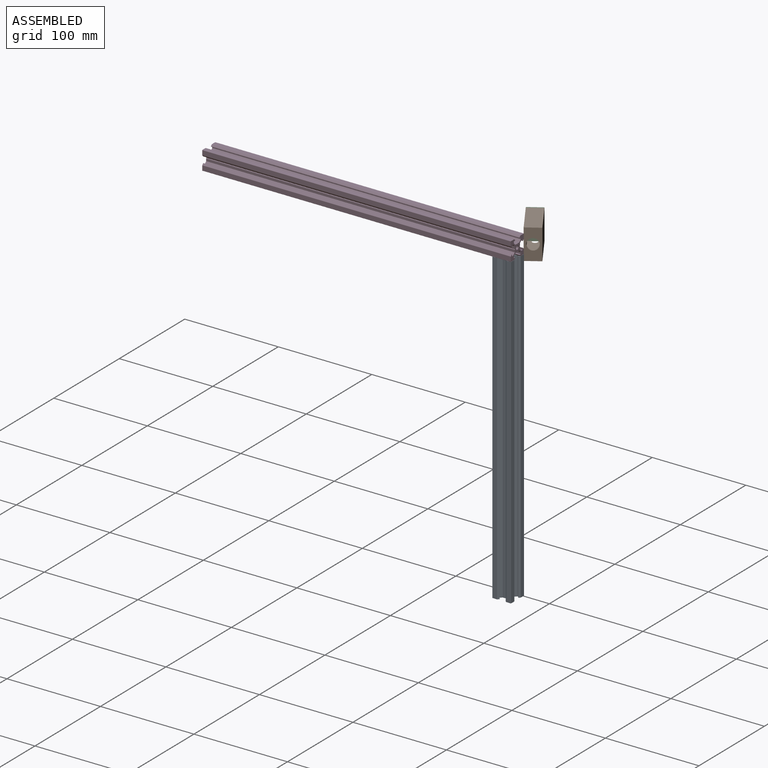
[diagram: assembled view]
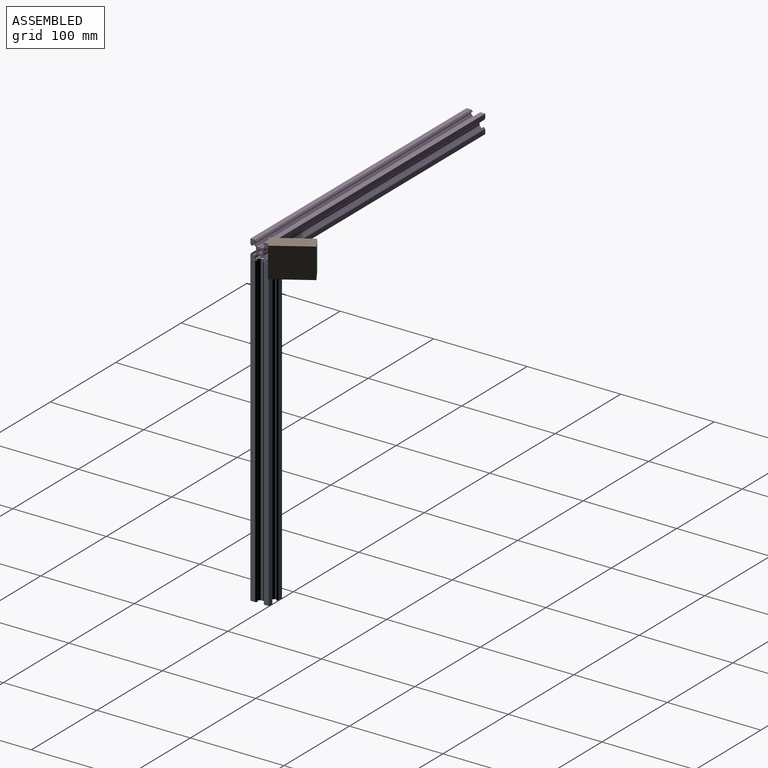
[diagram: assembled view, second angle]
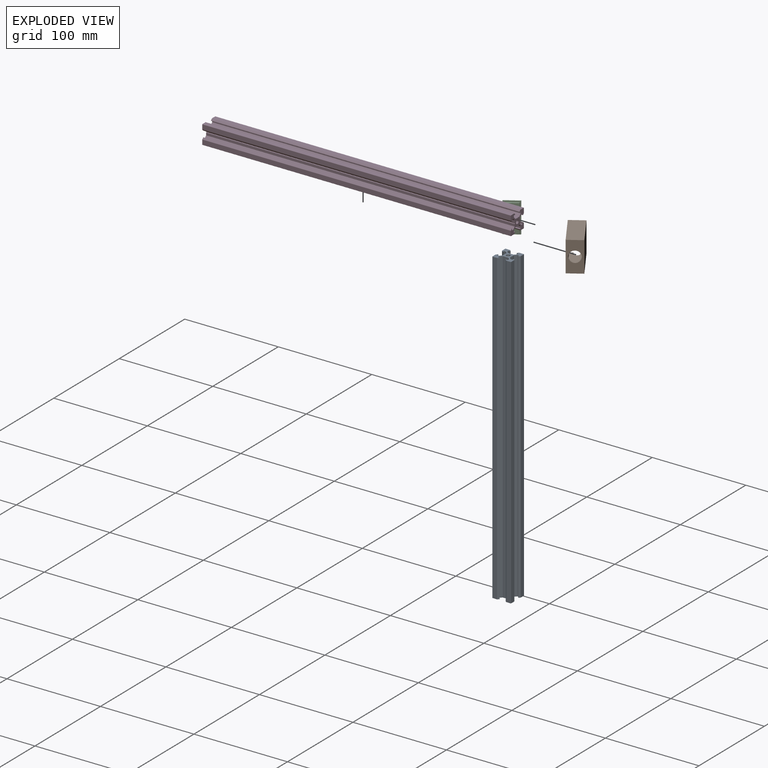
[diagram: exploded view]
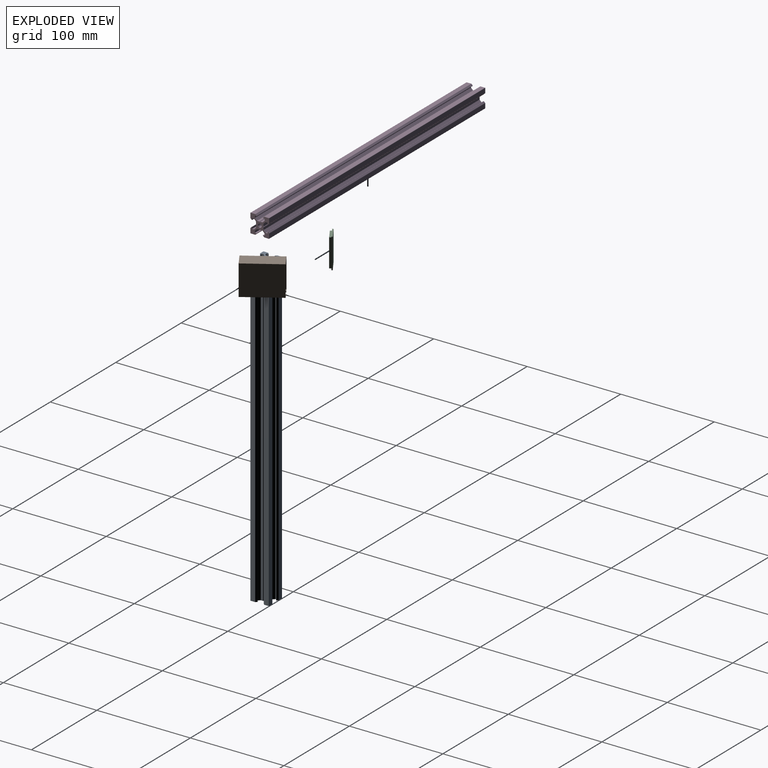
[diagram: exploded view, second angle]
ASSEMBLY  parts=4 mates=2
PART A: 79 faces, bbox 330x20x20 mm
  f0: plane 330x0.5mm, normal (0,-0.71,-0.71), area 233.3mm2, adj f1,f76,f77,f78
  f1: plane 330x0.5mm, normal (0,-0.71,0.71), area 233.3mm2, adj f0,f2,f77,f78
  f2: plane 330x2.51mm, normal (0,-1,0), area 828.3mm2, adj f1,f3,f77,f78
  f3: plane 330x2.2mm, normal (0,-0.71,0.71), area 1026.7mm2, adj f2,f4,f77,f78
  f4: plane 330x2mm, normal (0,0,1), area 660mm2, adj f3,f5,f77,f78
  f5: plane 330x1.73mm, normal (0,1,0), area 570mm2, adj f4,f6,f77,f78
  f6: cylinder r=0.2mm len=330mm, axis (-1,0,0), area 155.5mm2, adj f5,f7,f77,f78
  f7: plane 330x1.4mm, normal (0,-0.71,0.71), area 653.4mm2, adj f6,f8,f77,f78
  f8: cylinder r=0.2mm len=330mm, axis (-1,0,0), area 51.8mm2, adj f7,f9,f77,f78
  f9: plane 330x4.92mm, normal (0,-1,0), area 1622.7mm2, adj f8,f10,f77,f78
  f10: cylinder r=0.2mm len=330mm, axis (-1,0,0), area 103.7mm2, adj f9,f11,f77,f78
  f11: plane 330x4.92mm, normal (0,0,-1), area 1622.7mm2, adj f10,f12,f77,f78
  f12: cylinder r=0.2mm len=330mm, axis (-1,0,0), area 51.8mm2, adj f11,f13,f77,f78
  f13: plane 330x1.4mm, normal (0,0.71,-0.71), area 653.4mm2, adj f12,f14,f77,f78
  f14: cylinder r=0.2mm len=330mm, axis (-1,0,0), area 155.5mm2, adj f13,f15,f77,f78
  f15: plane 330x1.73mm, normal (0,0,1), area 570mm2, adj f14,f16,f77,f78
  f16: plane 330x2mm, normal (0,1,0), area 660mm2, adj f15,f17,f77,f78
  f17: plane 330x2.2mm, normal (0,0.71,-0.71), area 1026.7mm2, adj f16,f18,f77,f78
  f18: plane 330x2.51mm, normal (0,0,-1), area 828.3mm2, adj f17,f19,f77,f78
  f19: plane 330x0.5mm, normal (0,0.71,-0.71), area 233.3mm2, adj f18,f20,f77,f78
  f20: plane 330x0.5mm, normal (0,-0.71,-0.71), area 233.3mm2, adj f19,f21,f77,f78
  f21: plane 330x2.51mm, normal (0,0,-1), area 828.3mm2, adj f20,f22,f77,f78
  f22: plane 330x2.2mm, normal (0,-0.71,-0.71), area 1026.7mm2, adj f21,f23,f77,f78
  f23: plane 330x2mm, normal (0,-1,0), area 660mm2, adj f22,f24,f77,f78
  f24: plane 330x1.73mm, normal (0,0,1), area 570mm2, adj f23,f25,f77,f78
  f25: cylinder r=0.2mm len=330mm, axis (-1,0,0), area 155.5mm2, adj f24,f26,f77,f78
  f26: plane 330x1.4mm, normal (0,-0.71,-0.71), area 653.4mm2, adj f25,f27,f77,f78
  f27: cylinder r=0.2mm len=330mm, axis (-1,0,0), area 51.8mm2, adj f26,f28,f77,f78
  f28: plane 330x4.92mm, normal (0,0,-1), area 1622.7mm2, adj f27,f29,f77,f78
  f29: cylinder r=0.2mm len=330mm, axis (-1,0,0), area 103.7mm2, adj f28,f30,f77,f78
  f30: plane 330x4.92mm, normal (0,1,0), area 1622.7mm2, adj f29,f31,f77,f78
  f31: cylinder r=0.2mm len=330mm, axis (-1,0,0), area 51.8mm2, adj f30,f32,f77,f78
  f32: plane 330x1.4mm, normal (0,0.71,0.71), area 653.4mm2, adj f31,f33,f77,f78
  f33: cylinder r=0.2mm len=330mm, axis (-1,0,0), area 155.5mm2, adj f32,f34,f77,f78
  f34: plane 330x1.73mm, normal (0,-1,0), area 570mm2, adj f33,f35,f77,f78
  f35: plane 330x2mm, normal (0,0,1), area 660mm2, adj f34,f36,f77,f78
  f36: plane 330x2.2mm, normal (0,0.71,0.71), area 1026.7mm2, adj f35,f37,f77,f78
  f37: plane 330x2.51mm, normal (0,1,0), area 828.3mm2, adj f36,f38,f77,f78
  f38: plane 330x0.5mm, normal (0,0.71,0.71), area 233.3mm2, adj f37,f39,f77,f78
  f39: plane 330x0.5mm, normal (0,0.71,-0.71), area 233.3mm2, adj f38,f40,f77,f78
  f40: plane 330x2.51mm, normal (0,1,0), area 828.3mm2, adj f39,f41,f77,f78
  f41: plane 330x2.2mm, normal (0,0.71,-0.71), area 1026.7mm2, adj f40,f42,f77,f78
  f42: plane 330x2mm, normal (0,0,-1), area 660mm2, adj f41,f43,f77,f78
  f43: plane 330x1.73mm, normal (0,-1,0), area 570mm2, adj f42,f44,f77,f78
  f44: cylinder r=0.2mm len=330mm, axis (-1,0,0), area 155.5mm2, adj f43,f45,f77,f78
  f45: plane 330x1.4mm, normal (0,0.71,-0.71), area 653.4mm2, adj f44,f46,f77,f78
  f46: cylinder r=0.2mm len=330mm, axis (-1,0,0), area 51.8mm2, adj f45,f47,f77,f78
  f47: plane 330x4.92mm, normal (0,1,0), area 1622.7mm2, adj f46,f48,f77,f78
  f48: cylinder r=0.2mm len=330mm, axis (-1,0,0), area 103.7mm2, adj f47,f49,f77,f78
  f49: plane 330x4.92mm, normal (0,0,1), area 1622.7mm2, adj f48,f50,f77,f78
  f50: cylinder r=0.2mm len=330mm, axis (-1,0,0), area 51.8mm2, adj f49,f51,f77,f78
  f51: plane 330x1.4mm, normal (0,-0.71,0.71), area 653.4mm2, adj f50,f52,f77,f78
  f52: cylinder r=0.2mm len=330mm, axis (-1,0,0), area 155.5mm2, adj f51,f53,f77,f78
  f53: plane 330x1.73mm, normal (0,0,-1), area 570mm2, adj f52,f54,f77,f78
  f54: plane 330x2mm, normal (0,-1,0), area 660mm2, adj f53,f55,f77,f78
  f55: plane 330x2.2mm, normal (0,-0.71,0.71), area 1026.7mm2, adj f54,f56,f77,f78
  f56: plane 330x2.51mm, normal (0,0,1), area 828.3mm2, adj f55,f57,f77,f78
  f57: plane 330x0.5mm, normal (0,-0.71,0.71), area 233.3mm2, adj f56,f58,f77,f78
  f58: plane 330x0.5mm, normal (0,0.71,0.71), area 233.3mm2, adj f57,f59,f77,f78
  f59: plane 330x2.51mm, normal (0,0,1), area 828.3mm2, adj f58,f60,f77,f78
  f60: plane 330x2.2mm, normal (0,0.71,0.71), area 1026.7mm2, adj f59,f61,f77,f78
  f61: plane 330x2mm, normal (0,1,0), area 660mm2, adj f60,f62,f77,f78
  f62: plane 330x1.73mm, normal (0,0,-1), area 570mm2, adj f61,f63,f77,f78
  f63: cylinder r=0.2mm len=330mm, axis (-1,0,0), area 155.5mm2, adj f62,f64,f77,f78
  f64: plane 330x1.4mm, normal (0,0.71,0.71), area 653.4mm2, adj f63,f65,f77,f78
  f65: cylinder r=0.2mm len=330mm, axis (-1,0,0), area 51.8mm2, adj f64,f66,f77,f78
  f66: plane 330x4.92mm, normal (0,0,1), area 1622.7mm2, adj f65,f67,f77,f78
  f67: cylinder r=0.2mm len=330mm, axis (-1,0,0), area 103.7mm2, adj f66,f68,f77,f78
  f68: plane 330x4.92mm, normal (0,-1,0), area 1622.7mm2, adj f67,f69,f77,f78
  f69: cylinder r=0.2mm len=330mm, axis (-1,0,0), area 51.8mm2, adj f68,f70,f77,f78
  f70: plane 330x1.4mm, normal (0,-0.71,-0.71), area 653.4mm2, adj f69,f71,f77,f78
  f71: cylinder r=0.2mm len=330mm, axis (-1,0,0), area 155.5mm2, adj f70,f72,f77,f78
  f72: plane 330x1.73mm, normal (0,1,0), area 570mm2, adj f71,f73,f77,f78
  f73: plane 330x2mm, normal (0,0,-1), area 660mm2, adj f72,f74,f77,f78
  f74: plane 330x2.2mm, normal (0,-0.71,-0.71), area 1026.7mm2, adj f73,f76,f77,f78
  f75: cylinder r=2mm len=330mm, axis (-1,0,0), area 4146.9mm2, adj f77,f78
  f76: plane 330x2.51mm, normal (0,-1,0), area 828.3mm2, adj f0,f74,f77,f78
  f77: plane 20x20mm, normal (1,0,0), area 174.1mm2, adj f0,f1,f2,f3,f4,f5,f6,f7
  f78: plane 20x20mm, normal (-1,0,0), area 174.1mm2, adj f0,f1,f2,f3,f4,f5,f6,f7
PART B: 15 faces, bbox 16.4x41.2x32.4 mm
  f0: plane 41.2x16.4mm, normal (0,0,-1), area 643.5mm2, adj f3,f6,f7,f11,f12,f13,f14
  f1: plane 40x14mm, normal (0,0,1), area 527.9mm2, adj f2,f9,f10,f11,f12,f13,f14
  f2: plane 30x14mm, normal (0,1,0), area 306.9mm2, adj f1,f5,f8,f9,f10
  f3: plane 41.2x32.4mm, normal (1,0,0), area 1334.9mm2, adj f0,f4,f7,f11
  f4: plane 41.2x16.4mm, normal (0,0,1), area 675.7mm2, adj f3,f6,f7,f11
  f5: cylinder r=6mm len=12mm, axis (0,1,0), area 45.2mm2, adj f2,f7
  f6: plane 41.2x32.4mm, normal (-1,0,0), area 1334.9mm2, adj f0,f4,f7,f11
  f7: plane 32.4x16.4mm, normal (0,-1,0), area 418.3mm2, adj f0,f3,f4,f5,f6
  f8: plane 40x14mm, normal (0,0,-1), area 560mm2, adj f2,f9,f10,f11
  f9: plane 40x30mm, normal (-1,0,0), area 1200mm2, adj f1,f2,f8,f11
  f10: plane 40x30mm, normal (1,0,0), area 1200mm2, adj f1,f2,f8,f11
  f11: plane 32.4x16.4mm, normal (0,1,0), area 104.2mm2, adj f0,f1,f3,f4,f6,f8,f9,f10
  f12: plane 3x1.2mm, normal (1,0,0), area 3.6mm2, adj f0,f1,f11,f14
  f13: plane 3x1.2mm, normal (-1,0,0), area 3.6mm2, adj f0,f1,f11,f14
  f14: cylinder r=3mm len=6mm, axis (0,0,-1), area 11.3mm2, adj f0,f1,f12,f13
PART C: 11 faces, bbox 16.4x3.2x32.4 mm
  f0: plane 32.4x1.2mm, normal (1,0,0), area 38.9mm2, adj f1,f3,f4,f5
  f1: plane 16.4x1.2mm, normal (0,0,-1), area 19.7mm2, adj f0,f2,f4,f5
  f2: plane 32.4x1.2mm, normal (-1,0,0), area 38.9mm2, adj f1,f3,f4,f5
  f3: plane 16.4x1.2mm, normal (0,0,1), area 19.7mm2, adj f0,f2,f4,f5
  f4: plane 32.4x16.4mm, normal (0,1,0), area 531.4mm2, adj f0,f1,f2,f3
  f5: plane 32.4x16.4mm, normal (0,-1,0), area 111.4mm2, adj f0,f1,f2,f3,f6,f7,f8,f9
  f6: plane 14x2mm, normal (0,0,-1), area 28mm2, adj f5,f7,f9,f10
  f7: plane 30x2mm, normal (-1,0,0), area 60mm2, adj f5,f6,f8,f10
  f8: plane 14x2mm, normal (0,0,1), area 28mm2, adj f5,f7,f9,f10
  f9: plane 30x2mm, normal (1,0,0), area 60mm2, adj f5,f6,f8,f10
  f10: plane 30x14mm, normal (0,-1,0), area 420mm2, adj f6,f7,f8,f9
PART D: same geometry as A
PLACE A rot(axis=(0,-1,0),90deg) t=(145.14,-27.41,-159.18)mm
PLACE B rot(axis=(0,0,1),32.4deg) t=(160.44,-12.66,13.41)mm
PLACE C rot(axis=(0,0,1),32.4deg) t=(160.44,-12.66,13.41)mm
PLACE D t=(-10.06,-27.41,15.82)mm fixed
MATE fastened B.f11 <-> C.f5  axis (-0.54,0.84,0) through (132.79,17.17,31.73)mm
MATE fastened D.f11 <-> A.f10  axis (0,0,1) through (154.94,-37.11,5.82)mm
